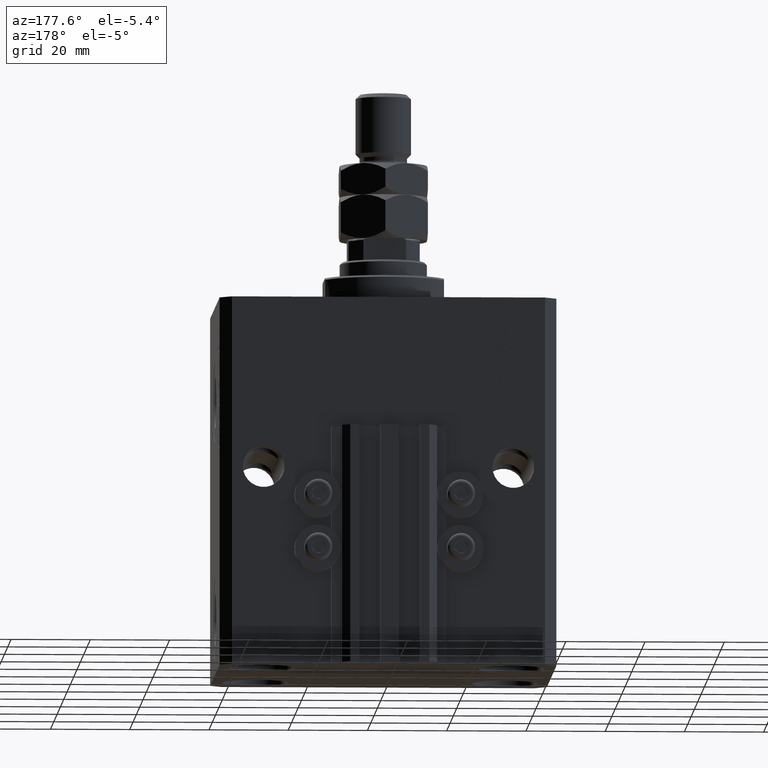
[diagram: clean part render]
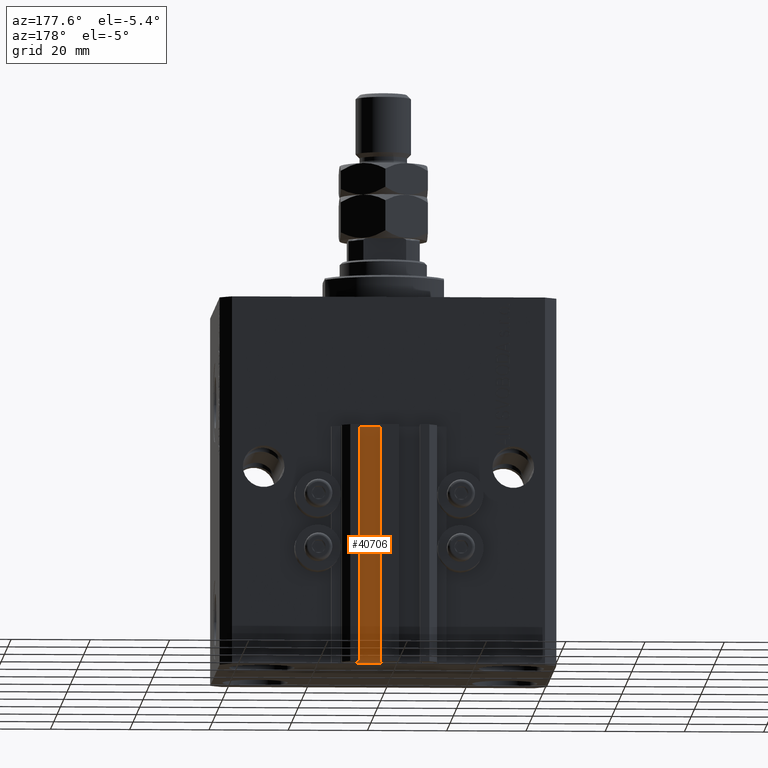
[diagram: same view with one face highlighted and labeled with its STEP entity id]
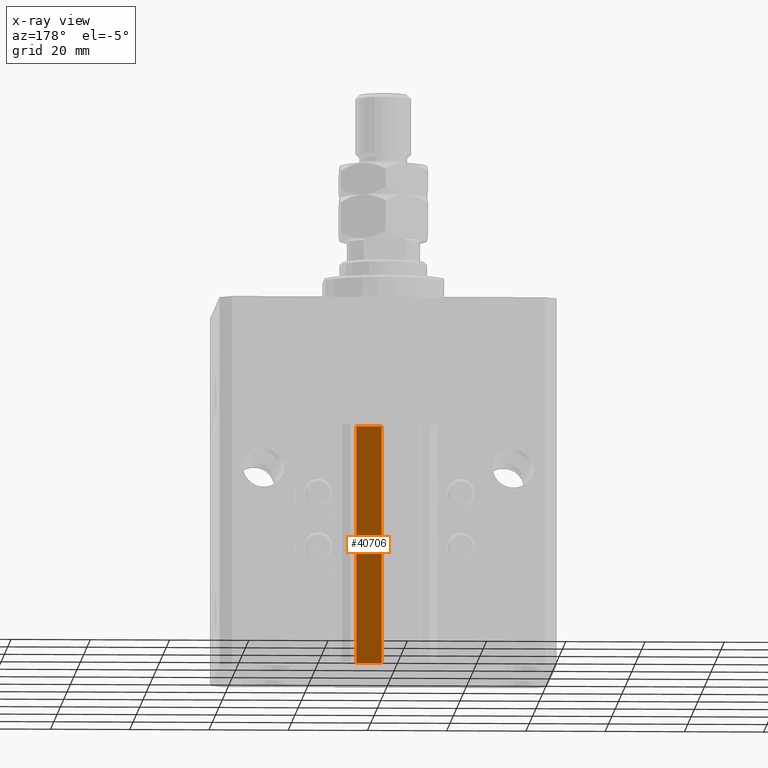
[diagram: x-ray of the same camera — body ghosted, the highlighted face saturated]
A machine part, auxiliary view. The second image highlights one B-rep face of the part: STEP entity #40706.
The next image is the same camera in x-ray: the body ghosted, the highlighted face saturated — about 0% of this face is hidden behind the body in this view.
In plain terms, the highlighted planar face has unit normal (0, 1, 0).
Its self-contained STEP definition (entity closure, byte-faithful):
#3228 = VERTEX_POINT ( 'NONE', #18503 ) ;
#3899 = EDGE_CURVE ( 'NONE', #37436, #24113, #36534, .T. ) ;
#6901 = ORIENTED_EDGE ( 'NONE', *, *, #30079, .F. ) ;
#7826 = LINE ( 'NONE', #34697, #41147 ) ;
#9400 = CARTESIAN_POINT ( 'NONE',  ( 8.199999999999999289, 33.50000000000000000, -33.00000000000000000 ) ) ;
#10097 = CARTESIAN_POINT ( 'NONE',  ( 8.199999999999999289, 33.50000000000000000, -93.00000000000000000 ) ) ;
#10487 = LINE ( 'NONE', #33832, #24306 ) ;
#11537 = VERTEX_POINT ( 'NONE', #9400 ) ;
#12911 = EDGE_CURVE ( 'NONE', #11537, #3228, #20730, .T. ) ;
#13050 = ORIENTED_EDGE ( 'NONE', *, *, #12911, .F. ) ;
#13404 = FACE_OUTER_BOUND ( 'NONE', #49427, .T. ) ;
#13676 = DIRECTION ( 'NONE',  ( -1.000000000000000000, 0.000000000000000000, 0.000000000000000000 ) ) ;
#14303 = EDGE_CURVE ( 'NONE', #24113, #3228, #7826, .T. ) ;
#15627 = DIRECTION ( 'NONE',  ( 0.000000000000000000, 0.000000000000000000, 1.000000000000000000 ) ) ;
#17473 = CARTESIAN_POINT ( 'NONE',  ( 8.199999999999999289, 33.50000000000000000, -33.00000000000000000 ) ) ;
#18503 = CARTESIAN_POINT ( 'NONE',  ( 1.800000000000000933, 33.50000000000000000, -33.00000000000000000 ) ) ;
#20030 = VECTOR ( 'NONE', #13676, 1000.000000000000000 ) ;
#20730 = LINE ( 'NONE', #17473, #33893 ) ;
#20881 = CARTESIAN_POINT ( 'NONE',  ( 1.800000000000000933, 33.50000000000000000, -93.00000000000000000 ) ) ;
#24113 = VERTEX_POINT ( 'NONE', #20881 ) ;
#24306 = VECTOR ( 'NONE', #37114, 1000.000000000000000 ) ;
#27713 = ORIENTED_EDGE ( 'NONE', *, *, #14303, .T. ) ;
#27987 = DIRECTION ( 'NONE',  ( 0.000000000000000000, 1.000000000000000000, -0.000000000000000000 ) ) ;
#28474 = CARTESIAN_POINT ( 'NONE',  ( 8.199999999999999289, 33.50000000000000000, -93.00000000000000000 ) ) ;
#30079 = EDGE_CURVE ( 'NONE', #37436, #11537, #10487, .T. ) ;
#30214 = AXIS2_PLACEMENT_3D ( 'NONE', #28474, #27987, #32736 ) ;
#32736 = DIRECTION ( 'NONE',  ( 0.000000000000000000, 0.000000000000000000, 1.000000000000000000 ) ) ;
#33476 = ORIENTED_EDGE ( 'NONE', *, *, #3899, .T. ) ;
#33832 = CARTESIAN_POINT ( 'NONE',  ( 8.199999999999999289, 33.50000000000000000, -93.00000000000000000 ) ) ;
#33893 = VECTOR ( 'NONE', #39806, 1000.000000000000000 ) ;
#34697 = CARTESIAN_POINT ( 'NONE',  ( 1.800000000000000933, 33.50000000000000000, -93.00000000000000000 ) ) ;
#36534 = LINE ( 'NONE', #40298, #20030 ) ;
#37114 = DIRECTION ( 'NONE',  ( 0.000000000000000000, 0.000000000000000000, 1.000000000000000000 ) ) ;
#37436 = VERTEX_POINT ( 'NONE', #10097 ) ;
#39806 = DIRECTION ( 'NONE',  ( -1.000000000000000000, 0.000000000000000000, 0.000000000000000000 ) ) ;
#40298 = CARTESIAN_POINT ( 'NONE',  ( 8.199999999999999289, 33.50000000000000000, -93.00000000000000000 ) ) ;
#40706 = ADVANCED_FACE ( 'NONE', ( #13404 ), #47590, .T. ) ;
#41147 = VECTOR ( 'NONE', #15627, 1000.000000000000000 ) ;
#47590 = PLANE ( 'NONE',  #30214 ) ;
#49427 = EDGE_LOOP ( 'NONE', ( #13050, #6901, #33476, #27713 ) ) ;